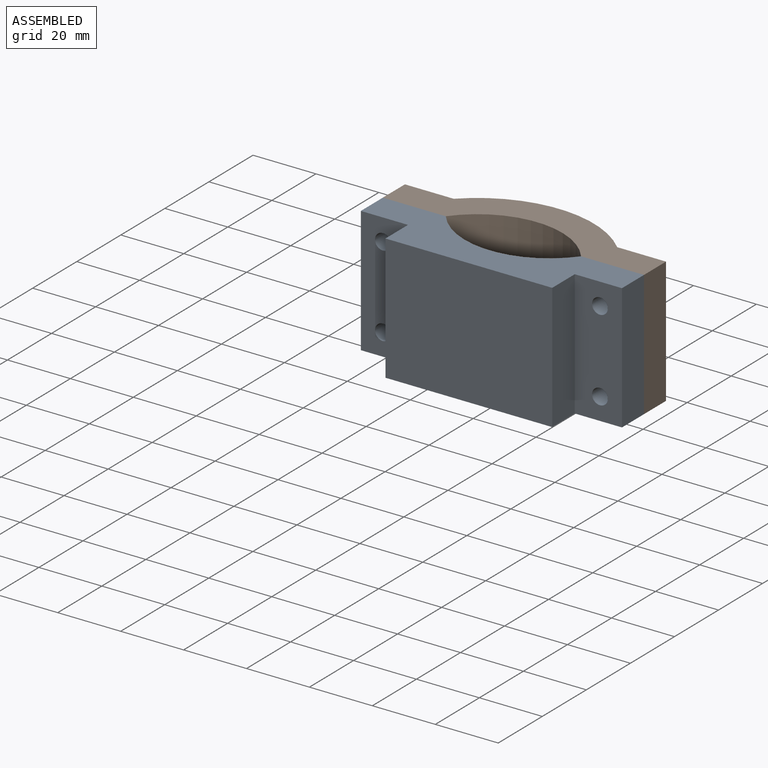
[diagram: assembled view]
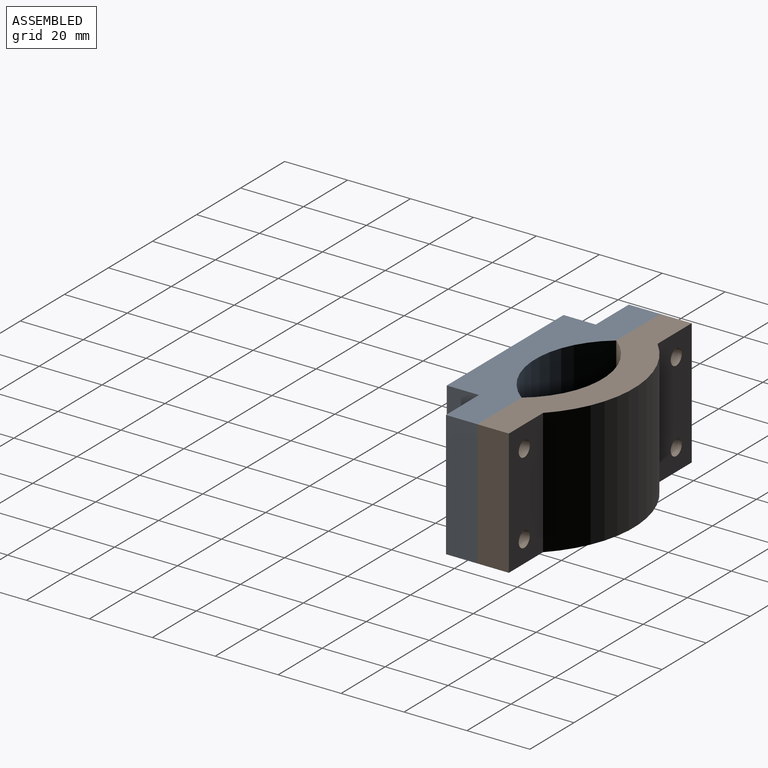
[diagram: assembled view, second angle]
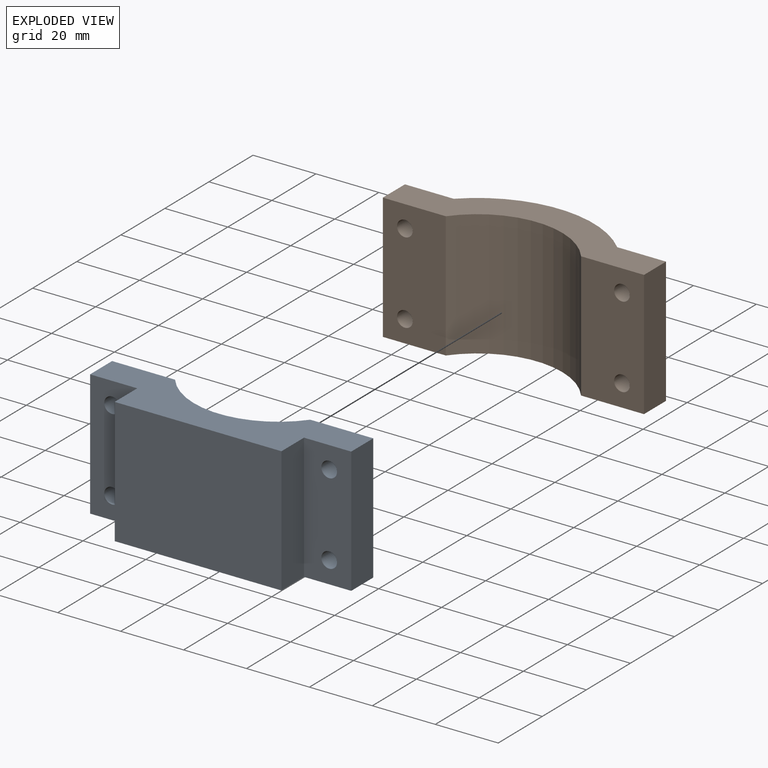
[diagram: exploded view]
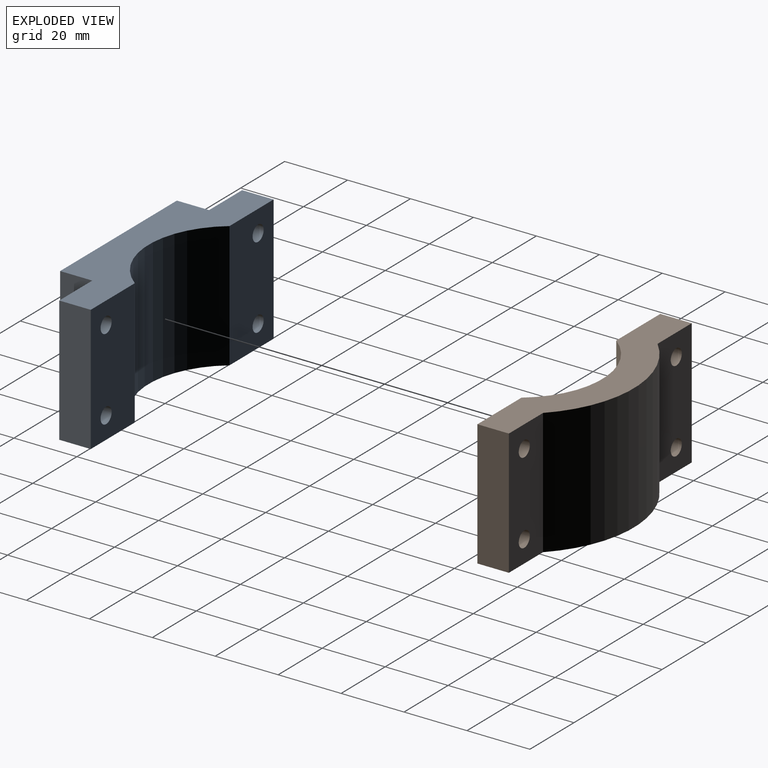
[diagram: exploded view, second angle]
ASSEMBLY  parts=2 mates=2
PART A: 16 faces, bbox 83x20.2x40 mm
  f0: plane 40x10mm, normal (-1,0,0), area 400mm2, adj f1,f9,f10,f11
  f1: plane 40x20mm, normal (0,-1,0), area 760.7mm2, adj f0,f2,f10,f11,f12,f13
  f2: cylinder r=27mm len=43mm, axis (0,0,-1), area 1989.7mm2, adj f1,f3,f10,f11
  f3: plane 40x20mm, normal (0,-1,0), area 760.7mm2, adj f2,f4,f10,f11,f14,f15
  f4: plane 40x10mm, normal (1,0,0), area 400mm2, adj f3,f5,f10,f11
  f5: plane 40x15mm, normal (0,1,0), area 560.7mm2, adj f4,f6,f10,f11,f14,f15
  f6: plane 40x10.23mm, normal (1,0,0), area 409.3mm2, adj f5,f7,f10,f11
  f7: plane 53x40mm, normal (0,1,0), area 2120mm2, adj f6,f8,f10,f11
  f8: plane 40x10.23mm, normal (-1,0,0), area 409.3mm2, adj f7,f9,f10,f11
  f9: plane 40x15mm, normal (0,1,0), area 560.7mm2, adj f0,f8,f10,f11,f12,f13
  f10: plane 83x20.23mm, normal (0,0,1), area 1051.9mm2, adj f0,f1,f2,f3,f4,f5,f6,f7
  f11: plane 83x20.23mm, normal (0,0,-1), area 1051.9mm2, adj f0,f1,f2,f3,f4,f5,f6,f7
  f12: cylinder r=2.5mm len=10mm, axis (0,1,0), area 157.1mm2, adj f1,f9
  f13: cylinder r=2.5mm len=10mm, axis (0,1,0), area 157.1mm2, adj f1,f9
  f14: cylinder r=2.5mm len=10mm, axis (0,1,0), area 157.1mm2, adj f3,f5
  f15: cylinder r=2.5mm len=10mm, axis (0,1,0), area 157.1mm2, adj f3,f5
PART B: 14 faces, bbox 83x20.7x40 mm
  f0: plane 40x15.51mm, normal (0,1,0), area 581mm2, adj f1,f7,f8,f9,f12,f13
  f1: plane 40x10mm, normal (-1,0,0), area 400mm2, adj f0,f2,f8,f9
  f2: plane 40x20mm, normal (0,-1,0), area 760.7mm2, adj f1,f3,f8,f9,f12,f13
  f3: cylinder r=27mm len=43mm, axis (0,0,-1), area 1989.7mm2, adj f2,f4,f8,f9
  f4: plane 40x20mm, normal (0,-1,0), area 760.7mm2, adj f3,f5,f8,f9,f10,f11
  f5: plane 40x10mm, normal (1,0,0), area 400mm2, adj f4,f6,f8,f9
  f6: plane 40x15.51mm, normal (0,1,0), area 581mm2, adj f5,f7,f8,f9,f10,f11
  f7: cylinder r=37mm len=51.98mm, axis (0,0,-1), area 2305.5mm2, adj f0,f6,f8,f9
  f8: plane 83x20.67mm, normal (0,0,1), area 891.5mm2, adj f0,f1,f2,f3,f4,f5,f6,f7
  f9: plane 83x20.67mm, normal (0,0,-1), area 891.5mm2, adj f0,f1,f2,f3,f4,f5,f6,f7
  f10: cylinder r=2.5mm len=10mm, axis (0,1,0), area 157.1mm2, adj f4,f6
  f11: cylinder r=2.5mm len=10mm, axis (0,1,0), area 157.1mm2, adj f4,f6
  f12: cylinder r=2.5mm len=10mm, axis (0,1,0), area 157.1mm2, adj f0,f2
  f13: cylinder r=2.5mm len=10mm, axis (0,1,0), area 157.1mm2, adj f0,f2
PLACE A rot(axis=(0,0,-1),180deg) t=(76.76,25.05,-19.21)mm
PLACE B rot(axis=(0,0,1),0deg) t=(-6.24,25.05,-19.21)mm
MATE planar B.f2 <-> A.f3  axis (0,-1,0) through (13.76,25.05,20.79)mm
MATE planar A.f0 <-> B.f5  axis (1,0,0) through (76.76,20.05,0.79)mm
